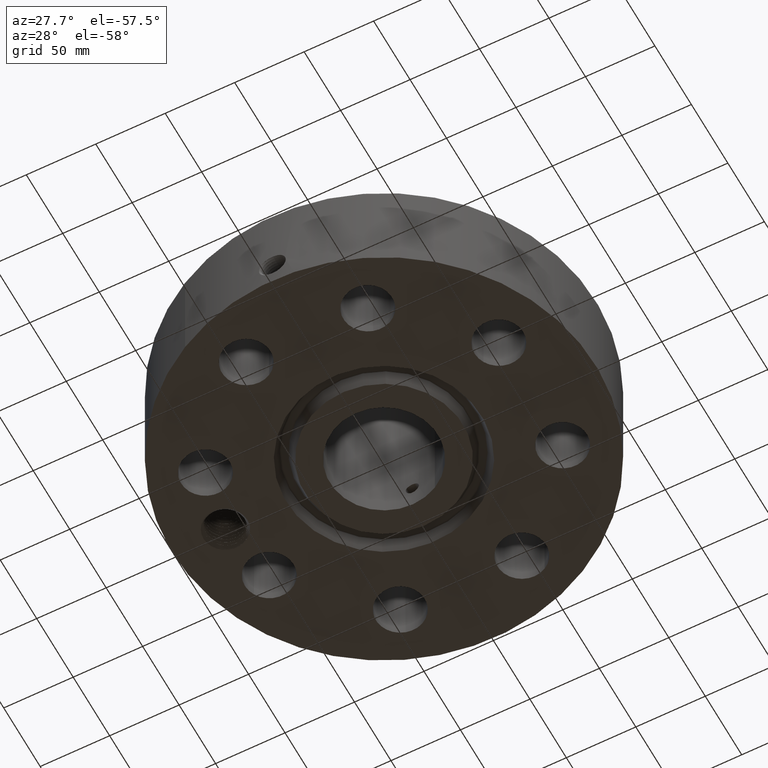
[diagram: clean part render]
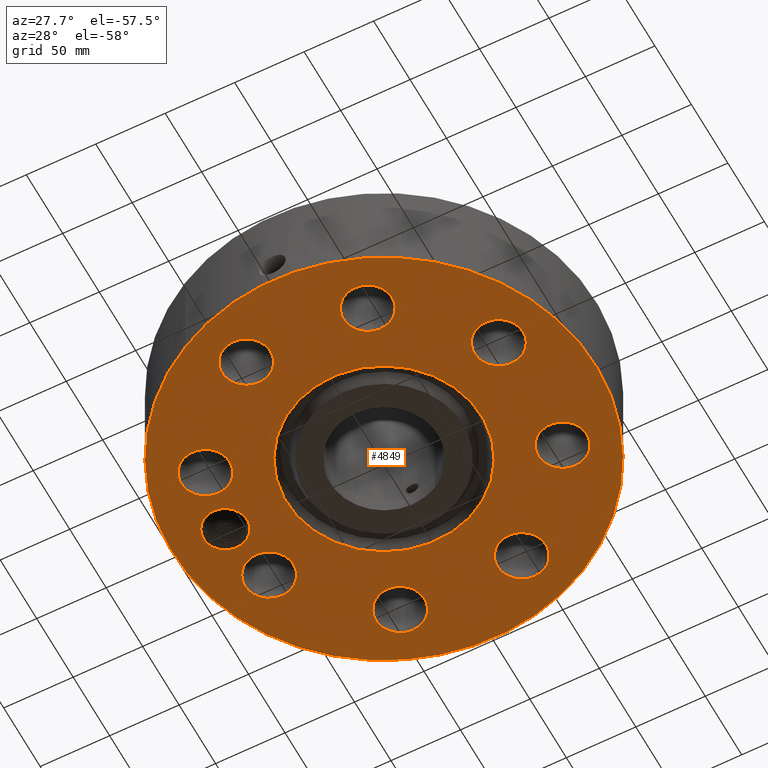
[diagram: same view with one face highlighted and labeled with its STEP entity id]
A machine part, auxiliary view. The second image highlights one B-rep face of the part: STEP entity #4849.
In plain terms, the highlighted planar face has unit normal (0, 0, -1).
Its self-contained STEP definition (entity closure, byte-faithful):
#598=AXIS2_PLACEMENT_3D('Plane Axis2P3D',#595,#596,#597) ;
#3473=AXIS2_PLACEMENT_3D('Circle Axis2P3D',#3471,#3472,$) ;
#3499=AXIS2_PLACEMENT_3D('Circle Axis2P3D',#3497,#3498,$) ;
#3772=AXIS2_PLACEMENT_3D('Circle Axis2P3D',#3770,#3771,$) ;
#3884=AXIS2_PLACEMENT_3D('Circle Axis2P3D',#3882,#3883,$) ;
#4125=AXIS2_PLACEMENT_3D('Circle Axis2P3D',#4123,#4124,$) ;
#4144=AXIS2_PLACEMENT_3D('Circle Axis2P3D',#4142,#4143,$) ;
#4168=AXIS2_PLACEMENT_3D('Circle Axis2P3D',#4166,#4167,$) ;
#4187=AXIS2_PLACEMENT_3D('Circle Axis2P3D',#4185,#4186,$) ;
#4211=AXIS2_PLACEMENT_3D('Circle Axis2P3D',#4209,#4210,$) ;
#4230=AXIS2_PLACEMENT_3D('Circle Axis2P3D',#4228,#4229,$) ;
#4254=AXIS2_PLACEMENT_3D('Circle Axis2P3D',#4252,#4253,$) ;
#4273=AXIS2_PLACEMENT_3D('Circle Axis2P3D',#4271,#4272,$) ;
#4297=AXIS2_PLACEMENT_3D('Circle Axis2P3D',#4295,#4296,$) ;
#4316=AXIS2_PLACEMENT_3D('Circle Axis2P3D',#4314,#4315,$) ;
#4340=AXIS2_PLACEMENT_3D('Circle Axis2P3D',#4338,#4339,$) ;
#4359=AXIS2_PLACEMENT_3D('Circle Axis2P3D',#4357,#4358,$) ;
#4383=AXIS2_PLACEMENT_3D('Circle Axis2P3D',#4381,#4382,$) ;
#4402=AXIS2_PLACEMENT_3D('Circle Axis2P3D',#4400,#4401,$) ;
#4426=AXIS2_PLACEMENT_3D('Circle Axis2P3D',#4424,#4425,$) ;
#4445=AXIS2_PLACEMENT_3D('Circle Axis2P3D',#4443,#4444,$) ;
#4756=AXIS2_PLACEMENT_3D('Circle Axis2P3D',#4754,#4755,$) ;
#4765=AXIS2_PLACEMENT_3D('Circle Axis2P3D',#4763,#4764,$) ;
#4772=AXIS2_PLACEMENT_3D('Circle Axis2P3D',#4770,#4771,$) ;
#595=CARTESIAN_POINT('Axis2P3D Location',(0.,1.53400000001,0.)) ;
#3471=CARTESIAN_POINT('Axis2P3D Location',(0.,0.,0.)) ;
#3475=CARTESIAN_POINT('Vertex',(-1.32585132702,2.42695457492,0.)) ;
#3477=CARTESIAN_POINT('Vertex',(1.32585132702,-2.42695457492,0.)) ;
#3497=CARTESIAN_POINT('Axis2P3D Location',(0.,0.,0.)) ;
#3770=CARTESIAN_POINT('Axis2P3D Location',(0.,0.,5.59482469102E-016)) ;
#3774=CARTESIAN_POINT('Vertex',(-2.87655323164,-5.26549537136,5.59482469102E-016)) ;
#3776=CARTESIAN_POINT('Vertex',(2.87655323164,5.26549537136,5.59482469102E-016)) ;
#3882=CARTESIAN_POINT('Axis2P3D Location',(0.,0.,5.59482469102E-016)) ;
#4120=CARTESIAN_POINT('Vertex',(4.76298986402,-2.05287906729,0.)) ;
#4123=CARTESIAN_POINT('Axis2P3D Location',(4.15745789632,-1.72207544565,0.)) ;
#4127=CARTESIAN_POINT('Vertex',(3.55192592861,-1.39127182401,0.)) ;
#4142=CARTESIAN_POINT('Axis2P3D Location',(4.15745789632,-1.72207544565,0.)) ;
#4163=CARTESIAN_POINT('Vertex',(1.52781316916,-3.49536865163,0.)) ;
#4166=CARTESIAN_POINT('Axis2P3D Location',(1.72207544565,-4.15745789632,0.)) ;
#4170=CARTESIAN_POINT('Vertex',(1.91633772214,-4.81954714101,0.)) ;
#4185=CARTESIAN_POINT('Axis2P3D Location',(1.72207544565,-4.15745789632,0.)) ;
#4206=CARTESIAN_POINT('Vertex',(-1.39127182401,-3.55192592861,0.)) ;
#4209=CARTESIAN_POINT('Axis2P3D Location',(-1.72207544565,-4.15745789632,0.)) ;
#4213=CARTESIAN_POINT('Vertex',(-2.05287906729,-4.76298986402,0.)) ;
#4228=CARTESIAN_POINT('Axis2P3D Location',(-1.72207544565,-4.15745789632,0.)) ;
#4249=CARTESIAN_POINT('Vertex',(-3.49536865163,-1.52781316916,0.)) ;
#4252=CARTESIAN_POINT('Axis2P3D Location',(-4.15745789632,-1.72207544565,0.)) ;
#4256=CARTESIAN_POINT('Vertex',(-4.81954714101,-1.91633772214,0.)) ;
#4271=CARTESIAN_POINT('Axis2P3D Location',(-4.15745789632,-1.72207544565,0.)) ;
#4292=CARTESIAN_POINT('Vertex',(-3.55192592861,1.39127182401,0.)) ;
#4295=CARTESIAN_POINT('Axis2P3D Location',(-4.15745789632,1.72207544565,0.)) ;
#4299=CARTESIAN_POINT('Vertex',(-4.76298986402,2.05287906729,0.)) ;
#4314=CARTESIAN_POINT('Axis2P3D Location',(-4.15745789632,1.72207544565,0.)) ;
#4335=CARTESIAN_POINT('Vertex',(-1.52781316916,3.49536865163,0.)) ;
#4338=CARTESIAN_POINT('Axis2P3D Location',(-1.72207544565,4.15745789632,0.)) ;
#4342=CARTESIAN_POINT('Vertex',(-1.91633772214,4.81954714101,0.)) ;
#4357=CARTESIAN_POINT('Axis2P3D Location',(-1.72207544565,4.15745789632,0.)) ;
#4378=CARTESIAN_POINT('Vertex',(1.39127182401,3.55192592861,0.)) ;
#4381=CARTESIAN_POINT('Axis2P3D Location',(1.72207544565,4.15745789632,0.)) ;
#4385=CARTESIAN_POINT('Vertex',(2.05287906729,4.76298986402,0.)) ;
#4400=CARTESIAN_POINT('Axis2P3D Location',(1.72207544565,4.15745789632,0.)) ;
#4421=CARTESIAN_POINT('Vertex',(3.49536865163,1.52781316916,0.)) ;
#4424=CARTESIAN_POINT('Axis2P3D Location',(4.15745789632,1.72207544565,0.)) ;
#4428=CARTESIAN_POINT('Vertex',(4.81954714101,1.91633772214,0.)) ;
#4443=CARTESIAN_POINT('Axis2P3D Location',(4.15745789632,1.72207544565,0.)) ;
#4754=CARTESIAN_POINT('Axis2P3D Location',(-4.50000000002,0.,0.)) ;
#4758=CARTESIAN_POINT('Vertex',(-5.03945000081,0.294702878581,0.)) ;
#4760=CARTESIAN_POINT('Vertex',(-4.03501767779,0.402054138168,0.)) ;
#4763=CARTESIAN_POINT('Axis2P3D Location',(-4.50000000002,0.,0.)) ;
#4767=CARTESIAN_POINT('Vertex',(-3.96054999922,-0.294702878581,0.)) ;
#4770=CARTESIAN_POINT('Axis2P3D Location',(-4.50000000002,0.,0.)) ;
#4774=CARTESIAN_POINT('Vertex',(-3.89684374207,-0.11856904527,0.)) ;
#4778=CARTESIAN_POINT('Control Point',(-3.880900324,-0.000229493969676,0.)) ;
#4779=CARTESIAN_POINT('Control Point',(-3.88178761828,-0.0241743415851,0.)) ;
#4780=CARTESIAN_POINT('Control Point',(-3.88383337103,-0.0480560788105,0.)) ;
#4781=CARTESIAN_POINT('Control Point',(-3.88703360602,-0.0717989054684,0.)) ;
#4782=CARTESIAN_POINT('Control Point',(-3.8913766633,-0.0953276310169,0.)) ;
#4783=CARTESIAN_POINT('Control Point',(-3.89684374207,-0.11856904527,0.)) ;
#4784=CARTESIAN_POINT('Vertex',(-3.880900324,-0.000229493969676,2.18547839493E-018)) ;
#4788=CARTESIAN_POINT('Control Point',(-3.89591227761,0.160322725179,0.)) ;
#4789=CARTESIAN_POINT('Control Point',(-3.88874164343,0.12871545432,0.)) ;
#4790=CARTESIAN_POINT('Control Point',(-3.8836287308,0.096676265068,0.)) ;
#4791=CARTESIAN_POINT('Control Point',(-3.8806116028,0.0643828550236,0.)) ;
#4792=CARTESIAN_POINT('Control Point',(-3.87970531502,0.0320194551355,0.)) ;
#4793=CARTESIAN_POINT('Control Point',(-3.880900324,-0.000229493969676,0.)) ;
#4794=CARTESIAN_POINT('Vertex',(-3.89591227761,0.160322725178,-9.83465277719E-018)) ;
#4798=CARTESIAN_POINT('Control Point',(-3.89591227761,0.160322725178,0.)) ;
#4799=CARTESIAN_POINT('Control Point',(-3.91237532574,0.214357847272,0.)) ;
#4800=CARTESIAN_POINT('Control Point',(-3.93491371748,0.266422378588,0.)) ;
#4801=CARTESIAN_POINT('Control Point',(-3.96323402251,0.315603911651,0.)) ;
#4802=CARTESIAN_POINT('Control Point',(-3.9968253235,0.361047084082,0.)) ;
#4803=CARTESIAN_POINT('Control Point',(-4.03501767779,0.402054138168,0.)) ;
#596=DIRECTION('Axis2P3D Direction',(0.,0.,-0.0393700787402)) ;
#597=DIRECTION('Axis2P3D XDirection',(0.0393700787402,0.,0.)) ;
#3472=DIRECTION('Axis2P3D Direction',(0.,0.,-0.0393700787402)) ;
#3498=DIRECTION('Axis2P3D Direction',(0.,0.,-0.0393700787402)) ;
#3771=DIRECTION('Axis2P3D Direction',(0.,0.,-0.0393700787402)) ;
#3883=DIRECTION('Axis2P3D Direction',(0.,0.,-0.0393700787402)) ;
#4124=DIRECTION('Axis2P3D Direction',(0.,-0.,-0.0393700787402)) ;
#4143=DIRECTION('Axis2P3D Direction',(0.,-0.,-0.0393700787402)) ;
#4167=DIRECTION('Axis2P3D Direction',(0.,-0.,-0.0393700787402)) ;
#4186=DIRECTION('Axis2P3D Direction',(0.,-0.,-0.0393700787402)) ;
#4210=DIRECTION('Axis2P3D Direction',(0.,-0.,-0.0393700787402)) ;
#4229=DIRECTION('Axis2P3D Direction',(0.,-0.,-0.0393700787402)) ;
#4253=DIRECTION('Axis2P3D Direction',(-0.,0.,-0.0393700787402)) ;
#4272=DIRECTION('Axis2P3D Direction',(-0.,0.,-0.0393700787402)) ;
#4296=DIRECTION('Axis2P3D Direction',(-0.,0.,-0.0393700787402)) ;
#4315=DIRECTION('Axis2P3D Direction',(-0.,0.,-0.0393700787402)) ;
#4339=DIRECTION('Axis2P3D Direction',(0.,0.,-0.0393700787402)) ;
#4358=DIRECTION('Axis2P3D Direction',(0.,0.,-0.0393700787402)) ;
#4382=DIRECTION('Axis2P3D Direction',(0.,0.,-0.0393700787402)) ;
#4401=DIRECTION('Axis2P3D Direction',(0.,0.,-0.0393700787402)) ;
#4425=DIRECTION('Axis2P3D Direction',(0.,0.,-0.0393700787402)) ;
#4444=DIRECTION('Axis2P3D Direction',(0.,0.,-0.0393700787402)) ;
#4755=DIRECTION('Axis2P3D Direction',(0.,0.,-0.0393700787402)) ;
#4764=DIRECTION('Axis2P3D Direction',(0.,0.,-0.0393700787402)) ;
#4771=DIRECTION('Axis2P3D Direction',(0.,0.,-0.0393700787402)) ;
#4751=ORIENTED_EDGE('',*,*,#3778,.T.) ;
#4752=ORIENTED_EDGE('',*,*,#3886,.T.) ;
#4806=ORIENTED_EDGE('',*,*,#4762,.F.) ;
#4807=ORIENTED_EDGE('',*,*,#4769,.F.) ;
#4808=ORIENTED_EDGE('',*,*,#4776,.F.) ;
#4809=ORIENTED_EDGE('',*,*,#4786,.F.) ;
#4810=ORIENTED_EDGE('',*,*,#4796,.F.) ;
#4811=ORIENTED_EDGE('',*,*,#4804,.T.) ;
#4814=ORIENTED_EDGE('',*,*,#4129,.F.) ;
#4815=ORIENTED_EDGE('',*,*,#4146,.F.) ;
#4818=ORIENTED_EDGE('',*,*,#4172,.F.) ;
#4819=ORIENTED_EDGE('',*,*,#4189,.F.) ;
#4822=ORIENTED_EDGE('',*,*,#4215,.F.) ;
#4823=ORIENTED_EDGE('',*,*,#4232,.F.) ;
#4826=ORIENTED_EDGE('',*,*,#4258,.F.) ;
#4827=ORIENTED_EDGE('',*,*,#4275,.F.) ;
#4830=ORIENTED_EDGE('',*,*,#4301,.F.) ;
#4831=ORIENTED_EDGE('',*,*,#4318,.F.) ;
#4834=ORIENTED_EDGE('',*,*,#4344,.F.) ;
#4835=ORIENTED_EDGE('',*,*,#4361,.F.) ;
#4838=ORIENTED_EDGE('',*,*,#4387,.F.) ;
#4839=ORIENTED_EDGE('',*,*,#4404,.F.) ;
#4842=ORIENTED_EDGE('',*,*,#4430,.F.) ;
#4843=ORIENTED_EDGE('',*,*,#4447,.F.) ;
#4846=ORIENTED_EDGE('',*,*,#3501,.F.) ;
#4847=ORIENTED_EDGE('',*,*,#3479,.F.) ;
#4812=FACE_BOUND('',#4805,.T.) ;
#4816=FACE_BOUND('',#4813,.T.) ;
#4820=FACE_BOUND('',#4817,.T.) ;
#4824=FACE_BOUND('',#4821,.T.) ;
#4828=FACE_BOUND('',#4825,.T.) ;
#4832=FACE_BOUND('',#4829,.T.) ;
#4836=FACE_BOUND('',#4833,.T.) ;
#4840=FACE_BOUND('',#4837,.T.) ;
#4844=FACE_BOUND('',#4841,.T.) ;
#4848=FACE_BOUND('',#4845,.T.) ;
#4849=ADVANCED_FACE('PartBody',(#4753,#4812,#4816,#4820,#4824,#4828,#4832,#4836,#4840,#4844,#4848),#599,.T.) ;
#4777=B_SPLINE_CURVE_WITH_KNOTS('',5,(#4778,#4779,#4780,#4781,#4782,#4783),.UNSPECIFIED.,.F.,.U.,(6,6),(0.,4.20532137235),.UNSPECIFIED.) ;
#4787=B_SPLINE_CURVE_WITH_KNOTS('',5,(#4788,#4789,#4790,#4791,#4792,#4793),.UNSPECIFIED.,.F.,.U.,(6,6),(0.,5.66373180087),.UNSPECIFIED.) ;
#4797=B_SPLINE_CURVE_WITH_KNOTS('',5,(#4798,#4799,#4800,#4801,#4802,#4803),.UNSPECIFIED.,.F.,.U.,(6,6),(0.,9.87118221324),.UNSPECIFIED.) ;
#3474=CIRCLE('generated circle',#3473,2.76550000001) ;
#3500=CIRCLE('generated circle',#3499,2.76550000001) ;
#3773=CIRCLE('generated circle',#3772,6.00000000002) ;
#3885=CIRCLE('generated circle',#3884,6.00000000002) ;
#4126=CIRCLE('generated circle',#4125,0.690000000003) ;
#4145=CIRCLE('generated circle',#4144,0.690000000003) ;
#4169=CIRCLE('generated circle',#4168,0.690000000003) ;
#4188=CIRCLE('generated circle',#4187,0.690000000003) ;
#4212=CIRCLE('generated circle',#4211,0.690000000003) ;
#4231=CIRCLE('generated circle',#4230,0.690000000003) ;
#4255=CIRCLE('generated circle',#4254,0.690000000003) ;
#4274=CIRCLE('generated circle',#4273,0.690000000003) ;
#4298=CIRCLE('generated circle',#4297,0.690000000003) ;
#4317=CIRCLE('generated circle',#4316,0.690000000003) ;
#4341=CIRCLE('generated circle',#4340,0.690000000003) ;
#4360=CIRCLE('generated circle',#4359,0.690000000003) ;
#4384=CIRCLE('generated circle',#4383,0.690000000003) ;
#4403=CIRCLE('generated circle',#4402,0.690000000003) ;
#4427=CIRCLE('generated circle',#4426,0.690000000003) ;
#4446=CIRCLE('generated circle',#4445,0.690000000003) ;
#4757=CIRCLE('generated circle',#4756,0.614700000002) ;
#4766=CIRCLE('generated circle',#4765,0.614700000002) ;
#4773=CIRCLE('generated circle',#4772,0.614700000002) ;
#3479=EDGE_CURVE('',#3476,#3478,#3474,.T.) ;
#3501=EDGE_CURVE('',#3478,#3476,#3500,.T.) ;
#3778=EDGE_CURVE('',#3775,#3777,#3773,.T.) ;
#3886=EDGE_CURVE('',#3777,#3775,#3885,.T.) ;
#4129=EDGE_CURVE('',#4121,#4128,#4126,.T.) ;
#4146=EDGE_CURVE('',#4128,#4121,#4145,.T.) ;
#4172=EDGE_CURVE('',#4164,#4171,#4169,.T.) ;
#4189=EDGE_CURVE('',#4171,#4164,#4188,.T.) ;
#4215=EDGE_CURVE('',#4207,#4214,#4212,.T.) ;
#4232=EDGE_CURVE('',#4214,#4207,#4231,.T.) ;
#4258=EDGE_CURVE('',#4250,#4257,#4255,.T.) ;
#4275=EDGE_CURVE('',#4257,#4250,#4274,.T.) ;
#4301=EDGE_CURVE('',#4293,#4300,#4298,.T.) ;
#4318=EDGE_CURVE('',#4300,#4293,#4317,.T.) ;
#4344=EDGE_CURVE('',#4336,#4343,#4341,.T.) ;
#4361=EDGE_CURVE('',#4343,#4336,#4360,.T.) ;
#4387=EDGE_CURVE('',#4379,#4386,#4384,.T.) ;
#4404=EDGE_CURVE('',#4386,#4379,#4403,.T.) ;
#4430=EDGE_CURVE('',#4422,#4429,#4427,.T.) ;
#4447=EDGE_CURVE('',#4429,#4422,#4446,.T.) ;
#4762=EDGE_CURVE('',#4759,#4761,#4757,.T.) ;
#4769=EDGE_CURVE('',#4768,#4759,#4766,.T.) ;
#4776=EDGE_CURVE('',#4775,#4768,#4773,.T.) ;
#4786=EDGE_CURVE('',#4785,#4775,#4777,.T.) ;
#4796=EDGE_CURVE('',#4795,#4785,#4787,.T.) ;
#4804=EDGE_CURVE('',#4795,#4761,#4797,.T.) ;
#4750=EDGE_LOOP('',(#4751,#4752)) ;
#4805=EDGE_LOOP('',(#4806,#4807,#4808,#4809,#4810,#4811)) ;
#4813=EDGE_LOOP('',(#4814,#4815)) ;
#4817=EDGE_LOOP('',(#4818,#4819)) ;
#4821=EDGE_LOOP('',(#4822,#4823)) ;
#4825=EDGE_LOOP('',(#4826,#4827)) ;
#4829=EDGE_LOOP('',(#4830,#4831)) ;
#4833=EDGE_LOOP('',(#4834,#4835)) ;
#4837=EDGE_LOOP('',(#4838,#4839)) ;
#4841=EDGE_LOOP('',(#4842,#4843)) ;
#4845=EDGE_LOOP('',(#4846,#4847)) ;
#4753=FACE_OUTER_BOUND('',#4750,.T.) ;
#599=PLANE('',#598) ;
#3476=VERTEX_POINT('',#3475) ;
#3478=VERTEX_POINT('',#3477) ;
#3775=VERTEX_POINT('',#3774) ;
#3777=VERTEX_POINT('',#3776) ;
#4121=VERTEX_POINT('',#4120) ;
#4128=VERTEX_POINT('',#4127) ;
#4164=VERTEX_POINT('',#4163) ;
#4171=VERTEX_POINT('',#4170) ;
#4207=VERTEX_POINT('',#4206) ;
#4214=VERTEX_POINT('',#4213) ;
#4250=VERTEX_POINT('',#4249) ;
#4257=VERTEX_POINT('',#4256) ;
#4293=VERTEX_POINT('',#4292) ;
#4300=VERTEX_POINT('',#4299) ;
#4336=VERTEX_POINT('',#4335) ;
#4343=VERTEX_POINT('',#4342) ;
#4379=VERTEX_POINT('',#4378) ;
#4386=VERTEX_POINT('',#4385) ;
#4422=VERTEX_POINT('',#4421) ;
#4429=VERTEX_POINT('',#4428) ;
#4759=VERTEX_POINT('',#4758) ;
#4761=VERTEX_POINT('',#4760) ;
#4768=VERTEX_POINT('',#4767) ;
#4775=VERTEX_POINT('',#4774) ;
#4785=VERTEX_POINT('',#4784) ;
#4795=VERTEX_POINT('',#4794) ;